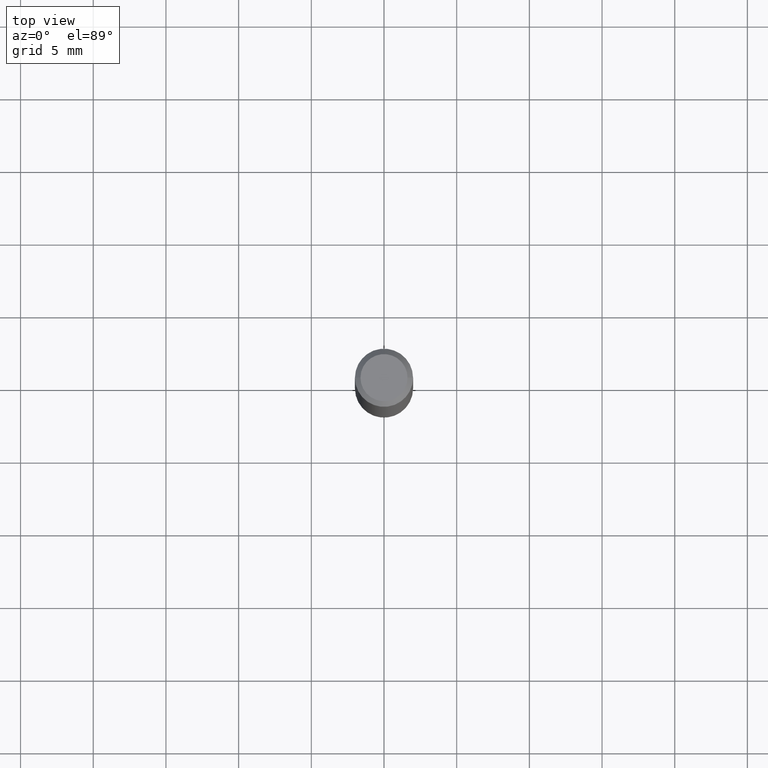
[diagram: clean part render]
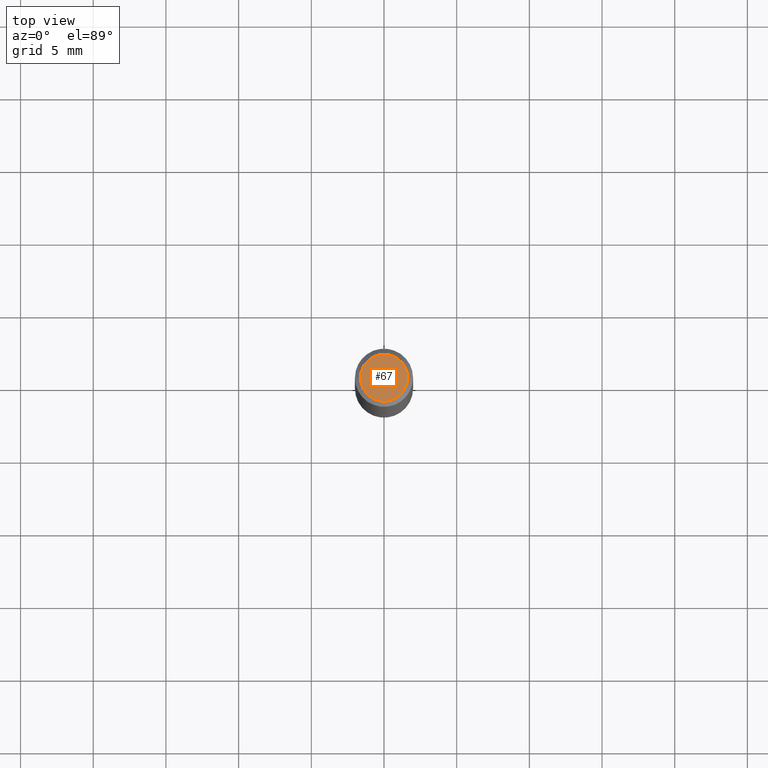
[diagram: same view with one face highlighted and labeled with its STEP entity id]
A machine part, top view. The second image highlights one B-rep face of the part: STEP entity #67.
In plain terms, the highlighted planar face has unit normal (0, -0, -1).
Its self-contained STEP definition (entity closure, byte-faithful):
#9 = AXIS2_PLACEMENT_3D ( 'NONE', #306, #205, #17 ) ;
#17 = DIRECTION ( 'NONE',  ( -1.000000000000000000, 6.982962677686265922E-15, -4.876176775795935793E-29 ) ) ;
#46 = AXIS2_PLACEMENT_3D ( 'NONE', #249, #95, #368 ) ;
#47 = CARTESIAN_POINT ( 'NONE',  ( -0.06375000000000000111, 4.713499807438225296E-16, -2.315107740929834566E-16 ) ) ;
#59 = FACE_OUTER_BOUND ( 'NONE', #464, .T. ) ;
#67 = ADVANCED_FACE ( 'NONE', ( #59 ), #137, .F. ) ;
#95 = DIRECTION ( 'NONE',  ( -2.445468806185136597E-29, 3.491481338843145583E-15, 1.000000000000000000 ) ) ;
#137 = PLANE ( 'NONE',  #9 ) ;
#150 = ORIENTED_EDGE ( 'NONE', *, *, #458, .T. ) ;
#162 = ORIENTED_EDGE ( 'NONE', *, *, #302, .T. ) ;
#195 = CARTESIAN_POINT ( 'NONE',  ( 5.661523763401571692E-45, -8.083155474867715899E-31, -2.315107740929802519E-16 ) ) ;
#205 = DIRECTION ( 'NONE',  ( 2.438088387897960049E-29, -3.491481338843145188E-15, -1.000000000000000000 ) ) ;
#213 = CARTESIAN_POINT ( 'NONE',  ( 0.06375000000000000111, -5.149965923825456210E-16, -2.315107740929768499E-16 ) ) ;
#233 = DIRECTION ( 'NONE',  ( -2.445468806185136597E-29, 3.491481338843145583E-15, 1.000000000000000000 ) ) ;
#238 = CIRCLE ( 'NONE', #46, 0.06375000000000000111 ) ;
#249 = CARTESIAN_POINT ( 'NONE',  ( 5.661523763401571692E-45, -8.083155474867715899E-31, -2.315107740929802519E-16 ) ) ;
#255 = VERTEX_POINT ( 'NONE', #213 ) ;
#300 = DIRECTION ( 'NONE',  ( 1.000000000000000000, -6.982962677686265922E-15, 4.852736867747365646E-29 ) ) ;
#302 = EDGE_CURVE ( 'NONE', #255, #404, #238, .T. ) ;
#306 = CARTESIAN_POINT ( 'NONE',  ( 4.451638707024993845E-16, 0.06375000000000000111, -3.383373223977406317E-16 ) ) ;
#368 = DIRECTION ( 'NONE',  ( 1.000000000000000000, -6.982962677686265922E-15, 4.852736867747365646E-29 ) ) ;
#387 = CIRCLE ( 'NONE', #443, 0.06375000000000000111 ) ;
#404 = VERTEX_POINT ( 'NONE', #47 ) ;
#443 = AXIS2_PLACEMENT_3D ( 'NONE', #195, #233, #300 ) ;
#458 = EDGE_CURVE ( 'NONE', #404, #255, #387, .T. ) ;
#464 = EDGE_LOOP ( 'NONE', ( #150, #162 ) ) ;